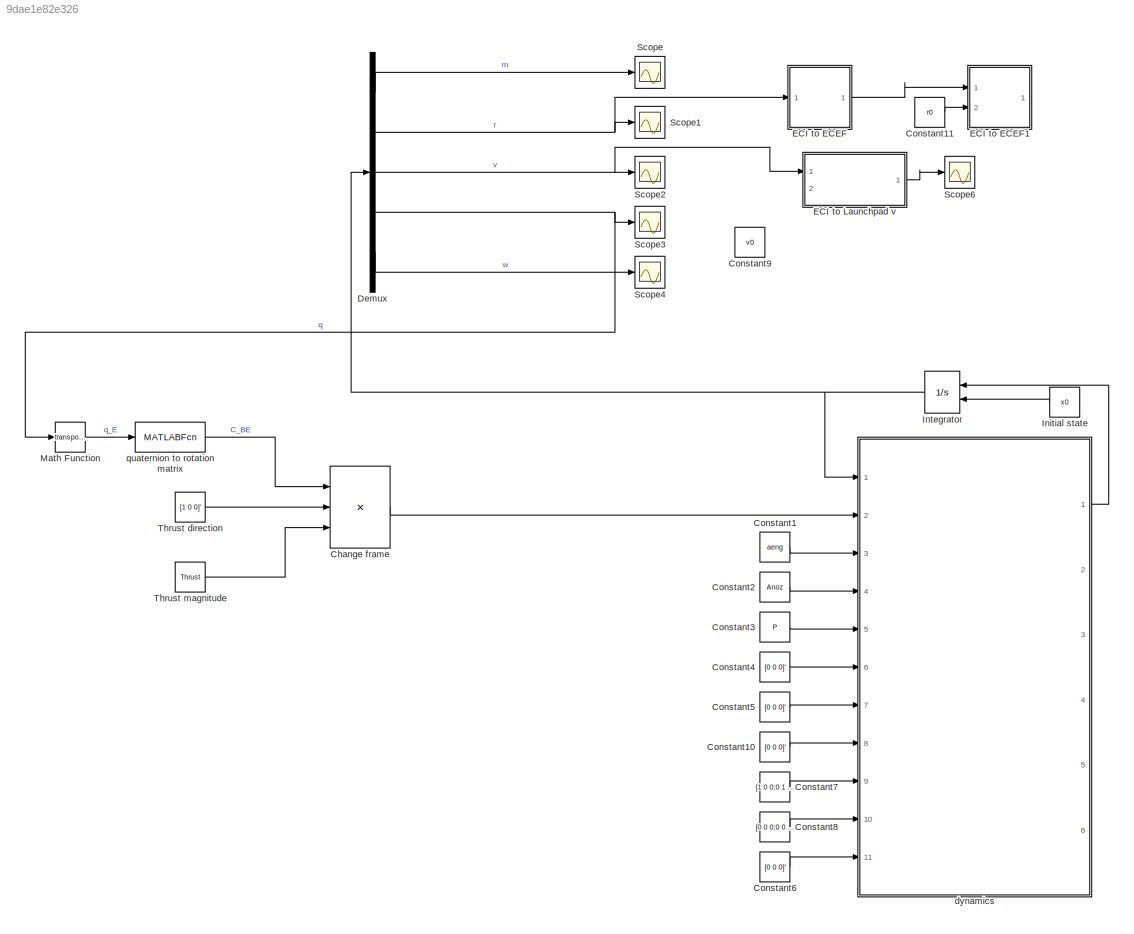
MODEL slx_9dae1e82e326
KIND model
CONFIG AbsTol = auto
CONFIG EnableMultiTasking = off
CONFIG FixedStep = auto
CONFIG InitFcn = initScript
CONFIG MaxStep = auto
CONFIG MinStep = auto
CONFIG RelTol = 1e-3
CONFIG SampleTimeConstraint = Unconstrained
CONFIG Solver = VariableStepAuto
CONFIG SolverName = VariableStepAuto
CONFIG StartTime = 0.0
CONFIG StopTime = 10
BLOCK [Product] Change frame
  InputSameDT = off
  Inputs = 3
  Multiplication = Matrix(*)
  OutDataTypeStr = Inherit: Inherit via internal rule
  Ports = [3, 1]
  RndMeth = Floor
  SaturateOnIntegerOverflow = off
BLOCK [Constant] Constant1
  Value = aeng
BLOCK [Constant] Constant10
  Value = [0 0 0]'
BLOCK [Constant] Constant11
  Value = r0
BLOCK [Constant] Constant2
  Value = Anoz
BLOCK [Constant] Constant3
  Value = P
BLOCK [Constant] Constant4
  Value = [0 0 0]'
BLOCK [Constant] Constant5
  Value = [0 0 0]'
BLOCK [Constant] Constant6
  Value = [0 0 0]'
BLOCK [Constant] Constant7
  Value = [1 0 0;0 1 0; 0 0 1]
BLOCK [Constant] Constant8
  Value = [0 0 0;0 0 0; 0 0 0]
BLOCK [Constant] Constant9
  Value = v0
BLOCK [Demux] Demux
  DisplayOption = bar
  Outputs = [1 3 3 4 3]
  Ports = [1, 5]
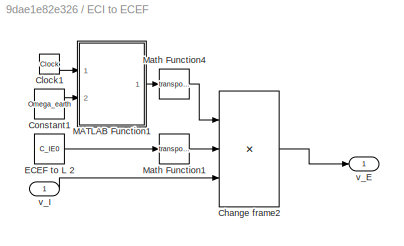
BLOCK [SubSystem] ECI to ECEF
  Ports = [1, 1]
  RequestExecContextInheritance = off
BLOCK [Product] ECI to ECEF/Change frame2
  InputSameDT = off
  Inputs = 3
  Multiplication = Matrix(*)
  OutDataTypeStr = Inherit: Inherit via internal rule
  Ports = [3, 1]
  RndMeth = Floor
  SaturateOnIntegerOverflow = off
BLOCK [Clock] ECI to ECEF/Clock1
BLOCK [Constant] ECI to ECEF/Constant1
  Value = Omega_earth
BLOCK [Constant] ECI to ECEF/ECEF to L 2
  Value = C_IE0
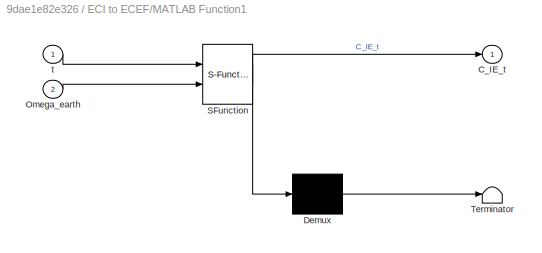
BLOCK [SubSystem] ECI to ECEF/MATLAB Function1
  ErrorFcn = Stateflow.Translate.translate
  PermitHierarchicalResolution = ExplicitOnly
  Ports = [2, 1]
  RequestExecContextInheritance = off
  SFBlockType = MATLAB Function
  TreatAsAtomicUnit = on
BLOCK [Demux] ECI to ECEF/MATLAB Function1/ Demux 
  Outputs = 1
  Ports = [1, 1]
BLOCK [S-Function] ECI to ECEF/MATLAB Function1/ SFunction 
  EnableBusSupport = on
  FunctionName = sf_sfun
  PortCounts = [2 2]
  Ports = [2, 2]
  SFcnIsStateOwnerBlock = off
  SFunctionDeploymentMode = off
  Tag = Stateflow S-Function 3
BLOCK [Terminator] ECI to ECEF/MATLAB Function1/ Terminator 
BLOCK [Outport] ECI to ECEF/MATLAB Function1/C_IE_t
  IconDisplay = Port number
BLOCK [Inport] ECI to ECEF/MATLAB Function1/Omega_earth
  IconDisplay = Port number
  Port = 2
BLOCK [Inport] ECI to ECEF/MATLAB Function1/t
  IconDisplay = Port number
BLOCK [Math] ECI to ECEF/Math Function1
  Operator = transpose
  Ports = [1, 1]
  SignedPower = off
BLOCK [Math] ECI to ECEF/Math Function4
  Operator = transpose
  Ports = [1, 1]
  SignedPower = off
BLOCK [Outport] ECI to ECEF/v_E
  IconDisplay = Port number
BLOCK [Inport] ECI to ECEF/v_I 
  IconDisplay = Port number
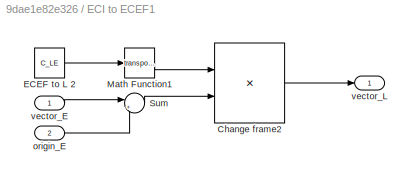
BLOCK [SubSystem] ECI to ECEF1
  Ports = [2, 1]
  RequestExecContextInheritance = off
BLOCK [Product] ECI to ECEF1/Change frame2
  InputSameDT = off
  Multiplication = Matrix(*)
  OutDataTypeStr = Inherit: Inherit via internal rule
  Ports = [2, 1]
  RndMeth = Floor
  SaturateOnIntegerOverflow = off
BLOCK [Constant] ECI to ECEF1/ECEF to L 2
  Value = C_LE
BLOCK [Math] ECI to ECEF1/Math Function1
  Operator = transpose
  Ports = [1, 1]
  SignedPower = off
BLOCK [Sum] ECI to ECEF1/Sum
  IconShape = round
  InputSameDT = off
  Inputs = |+-
  OutDataTypeStr = Inherit: Inherit via internal rule
  Ports = [2, 1]
  SaturateOnIntegerOverflow = off
BLOCK [Inport] ECI to ECEF1/origin_E 
  IconDisplay = Port number
  Port = 2
BLOCK [Inport] ECI to ECEF1/vector_E 
  IconDisplay = Port number
BLOCK [Outport] ECI to ECEF1/vector_L
  IconDisplay = Port number
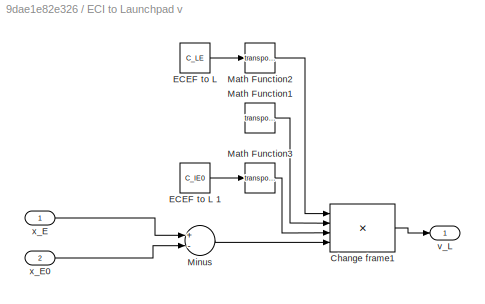
BLOCK [SubSystem] ECI to Launchpad v
  Ports = [2, 1]
  RequestExecContextInheritance = off
BLOCK [Product] ECI to Launchpad v/Change frame1
  InputSameDT = off
  Inputs = 4
  Multiplication = Matrix(*)
  OutDataTypeStr = Inherit: Inherit via internal rule
  Ports = [4, 1]
  RndMeth = Floor
  SaturateOnIntegerOverflow = off
BLOCK [Constant] ECI to Launchpad v/ECEF to L 
  Value = C_LE
BLOCK [Constant] ECI to Launchpad v/ECEF to L 1
  Value = C_IE0
BLOCK [Math] ECI to Launchpad v/Math Function1
  Operator = transpose
  Ports = [1, 1]
  SignedPower = off
BLOCK [Math] ECI to Launchpad v/Math Function2
  Operator = transpose
  Ports = [1, 1]
  SignedPower = off
BLOCK [Math] ECI to Launchpad v/Math Function3
  Operator = transpose
  Ports = [1, 1]
  SignedPower = off
BLOCK [Sum] ECI to Launchpad v/Minus
  InputSameDT = off
  Inputs = +-
  OutDataTypeStr = Inherit: Inherit via internal rule
  Ports = [2, 1]
  SaturateOnIntegerOverflow = off
BLOCK [Outport] ECI to Launchpad v/v_L
  IconDisplay = Port number
BLOCK [Inport] ECI to Launchpad v/x_E
  IconDisplay = Port number
BLOCK [Inport] ECI to Launchpad v/x_E0
  IconDisplay = Port number
  Port = 2
BLOCK [Constant] Initial state
  Value = x0
BLOCK [Integrator] Integrator
  InitialCondition = x0
  InitialConditionSource = external
  Ports = [2, 1]
BLOCK [Math] Math Function
  Operator = transpose
  Ports = [1, 1]
  SignedPower = off
BLOCK [Scope] Scope
  Floating = off
  NumInputPorts = 1
  Ports = [1]
  ScopeSpecificationString = Simulink.scopes.TimeScopeBlockCfg('CurrentConfiguration', extmgr.ConfigurationSet(extmgr.Configuration('Core','General UI',true),extmgr.Configuration('Core','Source UI',true),extmgr.Configuration('Sources','WiredSimulink',true),extmgr.Configuration('Visuals','Time Domain',true,'SerializedDisplays',{struct('MinYLimReal','249515.48612','MaxYLimReal','259527.16821','YLabelReal','','MinYLimMag','24951...<+1387ch>
BLOCK [Scope] Scope1
  Floating = off
  NumInputPorts = 1
  Ports = [1]
  ScopeSpecificationString = Simulink.scopes.TimeScopeBlockCfg('CurrentConfiguration', extmgr.ConfigurationSet(extmgr.Configuration('Core','General UI',true),extmgr.Configuration('Core','Source UI',true),extmgr.Configuration('Sources','WiredSimulink',true,'DataLoggingVariableName','ScopeData1'),extmgr.Configuration('Visuals','Time Domain',true,'SerializedDisplays',{struct('MinYLimReal','27902.82659','MaxYLimReal','5606629.749...<+1412ch>
BLOCK [Scope] Scope2
  Floating = off
  NumInputPorts = 1
  Ports = [1]
  ScopeSpecificationString = Simulink.scopes.TimeScopeBlockCfg('CurrentConfiguration', extmgr.ConfigurationSet(extmgr.Configuration('Core','General UI',true),extmgr.Configuration('Core','Source UI',true),extmgr.Configuration('Sources','WiredSimulink',true,'DataLoggingVariableName','ScopeData2'),extmgr.Configuration('Visuals','Time Domain',true,'SerializedDisplays',{struct('MinYLimReal','-8.5528','MaxYLimReal','76.97523','YLab...<+1420ch>
BLOCK [Scope] Scope3
  Floating = off
  NumInputPorts = 1
  Ports = [1]
  ScopeSpecificationString = Simulink.scopes.TimeScopeBlockCfg('CurrentConfiguration', extmgr.ConfigurationSet(extmgr.Configuration('Core','General UI',true),extmgr.Configuration('Core','Source UI',true),extmgr.Configuration('Sources','WiredSimulink',true,'DataLoggingVariableName','ScopeData3'),extmgr.Configuration('Visuals','Time Domain',true,'SerializedDisplays',{struct('MinYLimReal','-0.4817','MaxYLimReal','0.86962','YLabe...<+1422ch>
BLOCK [Scope] Scope4
  Floating = off
  NumInputPorts = 1
  Ports = [1]
  ScopeSpecificationString = Simulink.scopes.TimeScopeBlockCfg('CurrentConfiguration', extmgr.ConfigurationSet(extmgr.Configuration('Core','General UI',true),extmgr.Configuration('Core','Source UI',true),extmgr.Configuration('Sources','WiredSimulink',true,'DataLoggingVariableName','ScopeData4'),extmgr.Configuration('Visuals','Time Domain',true,'SerializedDisplays',{struct('MinYLimReal','-1.25','MaxYLimReal','11.25','YLabelRea...<+1385ch>
BLOCK [Scope] Scope6
  Floating = off
  NumInputPorts = 1
  Ports = [1]
  ScopeSpecificationString = Simulink.scopes.TimeScopeBlockCfg('CurrentConfiguration', extmgr.ConfigurationSet(extmgr.Configuration('Core','General UI',true),extmgr.Configuration('Core','Source UI',true),extmgr.Configuration('Sources','WiredSimulink',true,'DataLoggingVariableName','ScopeData1'),extmgr.Configuration('Visuals','Time Domain',true,'SerializedDisplays',{struct('MinYLimReal','-20.93346','MaxYLimReal','188.40113','Y...<+1529ch>
BLOCK [Constant] Thrust direction
  Value = [1 0 0]'
BLOCK [Constant] Thrust magnitude
  Value = Thrust
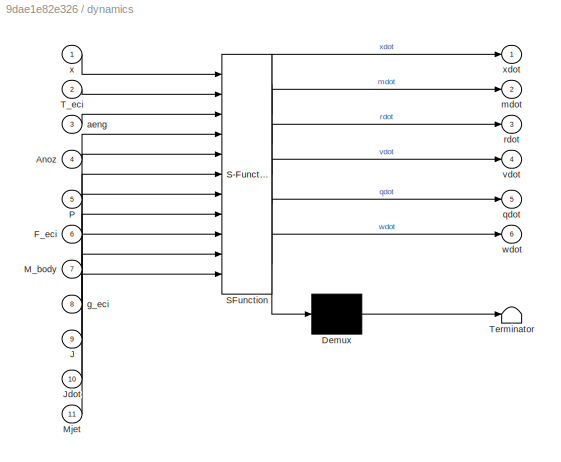
BLOCK [SubSystem] dynamics
  ErrorFcn = Stateflow.Translate.translate
  PermitHierarchicalResolution = ExplicitOnly
  Ports = [11, 6]
  RequestExecContextInheritance = off
  SFBlockType = MATLAB Function
  TreatAsAtomicUnit = on
BLOCK [Demux] dynamics/ Demux 
  Outputs = 1
  Ports = [1, 1]
BLOCK [S-Function] dynamics/ SFunction 
  EnableBusSupport = on
  FunctionName = sf_sfun
  PortCounts = [11 7]
  Ports = [11, 7]
  SFcnIsStateOwnerBlock = off
  SFunctionDeploymentMode = off
  Tag = Stateflow S-Function 2
BLOCK [Terminator] dynamics/ Terminator 
BLOCK [Inport] dynamics/Anoz
  IconDisplay = Port number
  Port = 4
BLOCK [Inport] dynamics/F_eci
  IconDisplay = Port number
  Port = 6
BLOCK [Inport] dynamics/J
  IconDisplay = Port number
  Port = 9
BLOCK [Inport] dynamics/Jdot
  IconDisplay = Port number
  Port = 10
BLOCK [Inport] dynamics/M_body
  IconDisplay = Port number
  Port = 7
BLOCK [Inport] dynamics/Mjet
  IconDisplay = Port number
  Port = 11
BLOCK [Inport] dynamics/P
  IconDisplay = Port number
  Port = 5
BLOCK [Inport] dynamics/T_eci
  IconDisplay = Port number
  Port = 2
BLOCK [Inport] dynamics/aeng
  IconDisplay = Port number
  Port = 3
BLOCK [Inport] dynamics/g_eci
  IconDisplay = Port number
  Port = 8
BLOCK [Outport] dynamics/mdot
  IconDisplay = Port number
  Port = 2
BLOCK [Outport] dynamics/qdot
  IconDisplay = Port number
  Port = 5
BLOCK [Outport] dynamics/rdot
  IconDisplay = Port number
  Port = 3
BLOCK [Outport] dynamics/vdot
  IconDisplay = Port number
  Port = 4
BLOCK [Outport] dynamics/wdot
  IconDisplay = Port number
  Port = 6
BLOCK [Inport] dynamics/x
  IconDisplay = Port number
BLOCK [Outport] dynamics/xdot
  IconDisplay = Port number
BLOCK [MATLABFcn] quaternion to  rotation matrix
  MATLABFcn = quat2dcm
  Output1D = off
  Ports = [1, 1]
LINE Change frame:1 -> dynamics:2
LINE Constant10:1 -> dynamics:8
LINE Constant11:1 -> ECI to ECEF1:2
LINE Constant1:1 -> dynamics:3
LINE Constant2:1 -> dynamics:4
LINE Constant3:1 -> dynamics:5
LINE Constant4:1 -> dynamics:6
LINE Constant5:1 -> dynamics:7
LINE Constant6:1 -> dynamics:11
LINE Constant7:1 -> dynamics:9
LINE Constant8:1 -> dynamics:10
LINE Demux:1 -> Scope:1
NET Demux:2 -> ECI to ECEF:1, Scope1:1
NET Demux:3 -> ECI to Launchpad v:1, Scope2:1
NET Demux:4 -> Math Function:1, Scope3:1
LINE Demux:5 -> Scope4:1
LINE ECI to ECEF/Change frame2:1 -> ECI to ECEF/v_E:1
LINE ECI to ECEF/Clock1:1 -> ECI to ECEF/MATLAB Function1:1
LINE ECI to ECEF/Constant1:1 -> ECI to ECEF/MATLAB Function1:2
LINE ECI to ECEF/ECEF to L 2:1 -> ECI to ECEF/Math Function1:1
LINE ECI to ECEF/MATLAB Function1:1 -> ECI to ECEF/Math Function4:1
LINE ECI to ECEF/Math Function1:1 -> ECI to ECEF/Change frame2:2
LINE ECI to ECEF/Math Function4:1 -> ECI to ECEF/Change frame2:1
LINE ECI to ECEF/v_I :1 -> ECI to ECEF/Change frame2:3
LINE ECI to ECEF1/Change frame2:1 -> ECI to ECEF1/vector_L:1
LINE ECI to ECEF1/ECEF to L 2:1 -> ECI to ECEF1/Math Function1:1
LINE ECI to ECEF1/Math Function1:1 -> ECI to ECEF1/Change frame2:1
LINE ECI to ECEF1/Sum:1 -> ECI to ECEF1/Change frame2:2
LINE ECI to ECEF1/origin_E :1 -> ECI to ECEF1/Sum:2
LINE ECI to ECEF1/vector_E :1 -> ECI to ECEF1/Sum:1
LINE ECI to ECEF:1 -> ECI to ECEF1:1
LINE ECI to Launchpad v/Change frame1:1 -> ECI to Launchpad v/v_L:1
LINE ECI to Launchpad v/ECEF to L 1:1 -> ECI to Launchpad v/Math Function3:1
LINE ECI to Launchpad v/ECEF to L :1 -> ECI to Launchpad v/Math Function2:1
LINE ECI to Launchpad v/Math Function1:1 -> ECI to Launchpad v/Change frame1:2
LINE ECI to Launchpad v/Math Function2:1 -> ECI to Launchpad v/Change frame1:1
LINE ECI to Launchpad v/Math Function3:1 -> ECI to Launchpad v/Change frame1:3
LINE ECI to Launchpad v/Minus:1 -> ECI to Launchpad v/Change frame1:4
LINE ECI to Launchpad v/x_E0:1 -> ECI to Launchpad v/Minus:2
LINE ECI to Launchpad v/x_E:1 -> ECI to Launchpad v/Minus:1
LINE ECI to Launchpad v:1 -> Scope6:1
LINE Initial state:1 -> Integrator:2
NET Integrator:1 -> Demux:1, dynamics:1
LINE Math Function:1 -> quaternion to  rotation matrix:1
LINE Thrust direction:1 -> Change frame:2
LINE Thrust magnitude:1 -> Change frame:3
LINE dynamics:1 -> Integrator:1
LINE quaternion to  rotation matrix:1 -> Change frame:1
note: NET lines group one-source signal fan-out (src -> all destinations, sorted); 1:1 wires keep LINE
CHART dynamics states=1 transitions=1
  STATE_LABEL 'eML_blk_kernel()'
  STATE_LABEL 'SCRIPT:\nfunction [xdot, mdot, rdot, vdot, qdot, wdot] = dynamics(x,T_eci,aeng,Anoz,P,F_eci,M_body,g_eci,J,Jdot,Mjet)\n\n% INPUTS\n% x      - state vector\n% T_eci  - thrust force in ECI frame\n% aeng   - mass depletion constant (Isp*g0)^-1\n% Anoz   - engine nozzle area\n% P      - atmospheric pressure\n% F_eci  - sum of non-propulsive forces in ECI frame\n% M_body - sum of moments in body frame\n% g_eci  -...<+678ch>'
CHART ECI to ECEF/MATLAB Function1 states=1 transitions=1
  STATE_LABEL 'eML_blk_kernel()'
  STATE_LABEL 'SCRIPT:\nfunction C_IE_t=ECI2ECEF(t,Omega_earth)\n   C_IE_t =  [cos(Omega_earth*t)     sin(Omega_earth*t)  0;...\n             -sin(Omega_earth*t)    cos(Omega_earth*t)  0;...\n             0                      0                   1];\nend'
